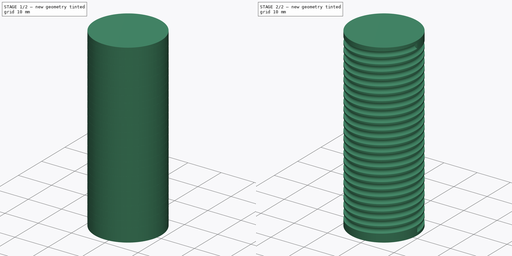
[diagram: build sequence overview — one tinted view per stage of 2, left to right]
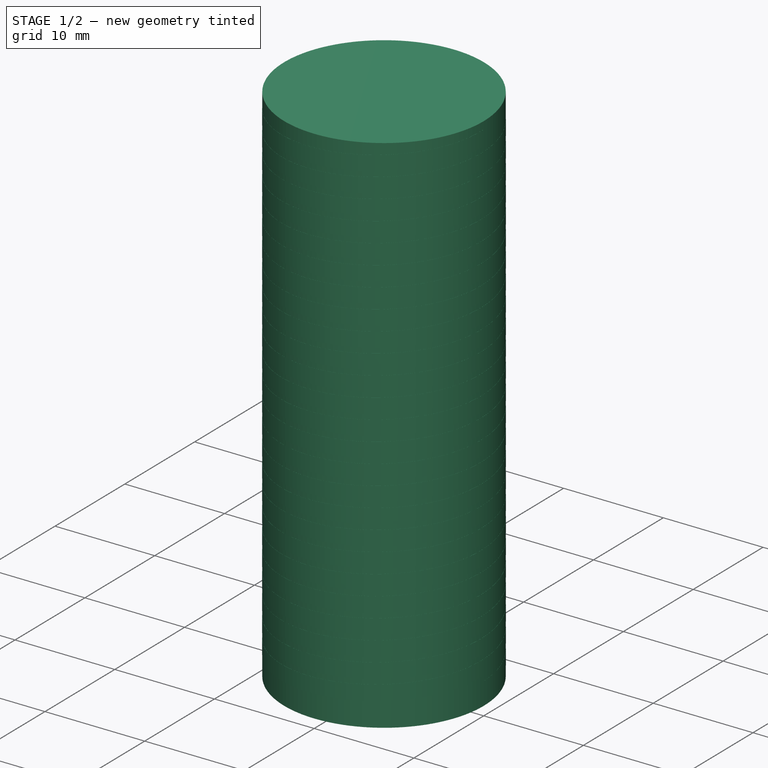
[diagram: stage 1 of 2 — iso view after this stage's code; geometry added in this stage tinted green]
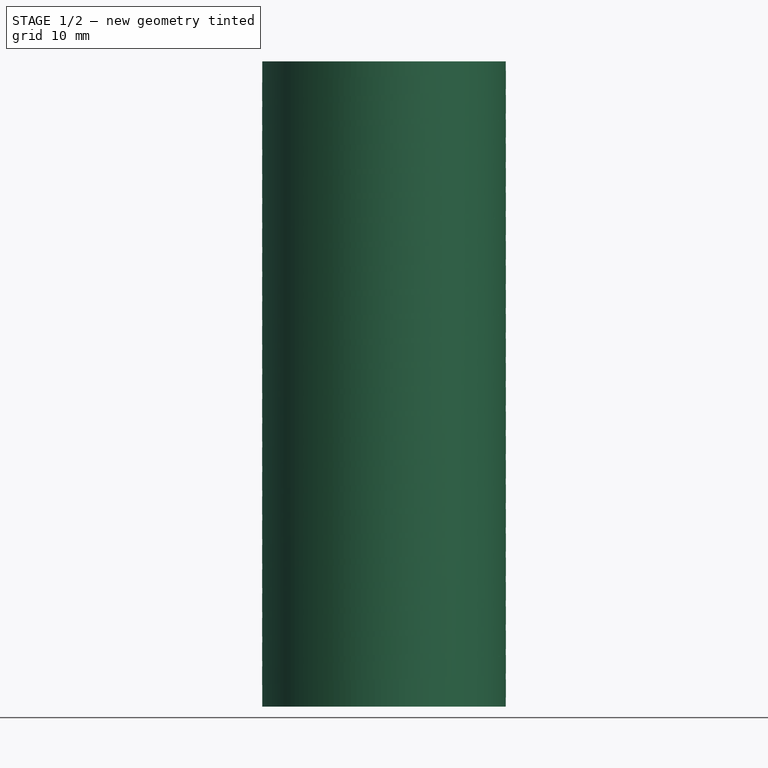
[diagram: stage 1 of 2 — front view after this stage's code; geometry added in this stage tinted green]
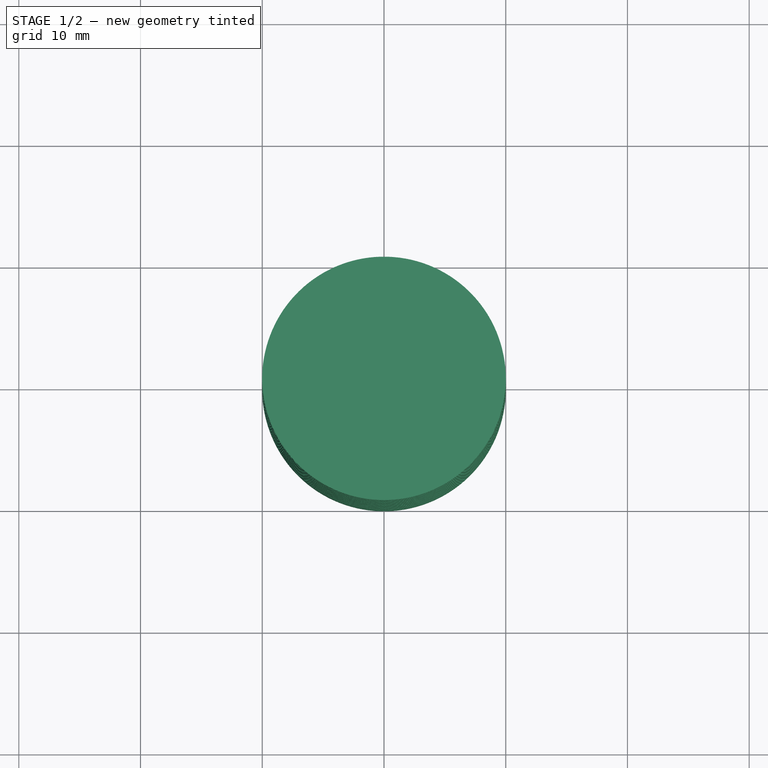
[diagram: stage 1 of 2 — top view after this stage's code; geometry added in this stage tinted green]
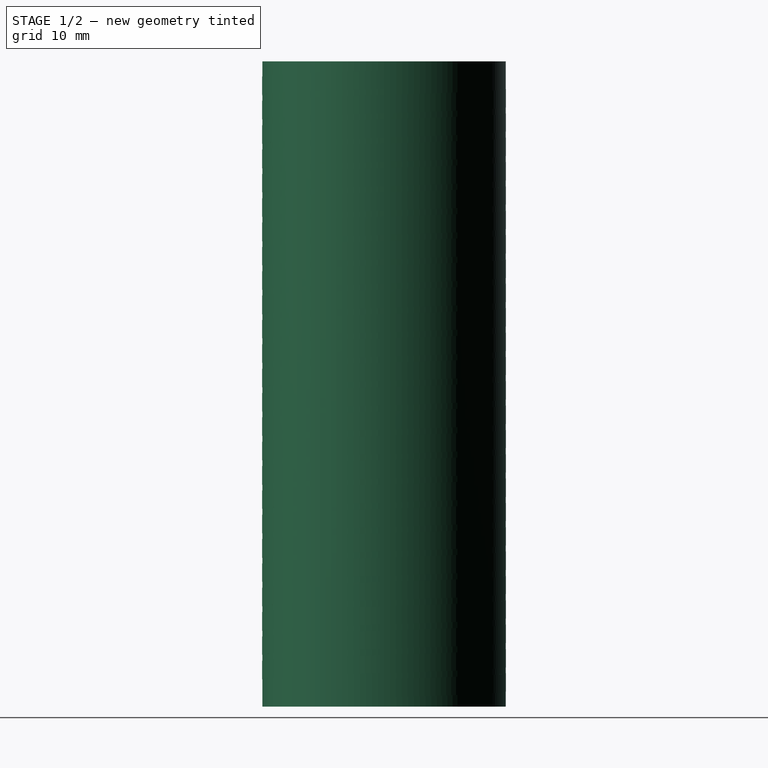
[diagram: stage 1 of 2 — right view after this stage's code; geometry added in this stage tinted green]
FCSTD DOCUMENT  (FreeCAD 0.16R6700 (Git))
Label: pulley_string
License: All rights reserved
LicenseURL: http://en.wikipedia.org/wiki/All_rights_reserved
objects: App::DocumentObjectGroup×1, Part::Helix×1, Sketcher::SketchObject×1, Part::Cylinder×1, Part::Sweep×1, Part::Cut×1
note: 5 computed .brp shape members not serialized (recipe doc carries the construction recipe); baked Part::Feature solids carry a one-line shape summary decoded from their .brp

FEATURE [App::DocumentObjectGroup] ____________
FEATURE [Part::Helix] Helix  label="Спираль"
  Angle = 0
  Height = 50
  LocalCoord = 0
  Pitch = 2
  Radius = 10
  Style = 1
FEATURE [Sketcher::SketchObject] Sketch
  Placement = pos=(0,0,0) rot=(1,0,0;1.5708rad)
  sketch-geometry (2):
    g0: ArcOfCircle CenterX=10.01 CenterY=0 CenterZ=0 NormalX=0 NormalY=0 NormalZ=1 Radius=0.75 StartAngle=1.5708 EndAngle=4.71239
    g1: LineSegment StartX=10.01 StartY=0.75 StartZ=0 EndX=10.01 EndY=-0.75 EndZ=0
  constraints (7):
    c: Vertical(g1)
    c: Coincident(g1,g0)
    c: PointOnObject(g0,g1)
    c: Coincident(g0,g1)
    c: Radius(g0) = 0.75
    c: PointOnObject(g0,g-1)
    c: Distance(g-1,g0) = 10.01
FEATURE [Part::Cylinder] Cylinder
  Angle = 360
  Height = 53
  Placement = pos=(0,0,-1.5) rot=(0,0,1;0rad)
  Radius = 10
FEATURE [Part::Sweep] Sweep
  Frenet = true
  Sections = -> [Sketch]
  Solid = true
  Spine = -> Helix
  Transition = 1
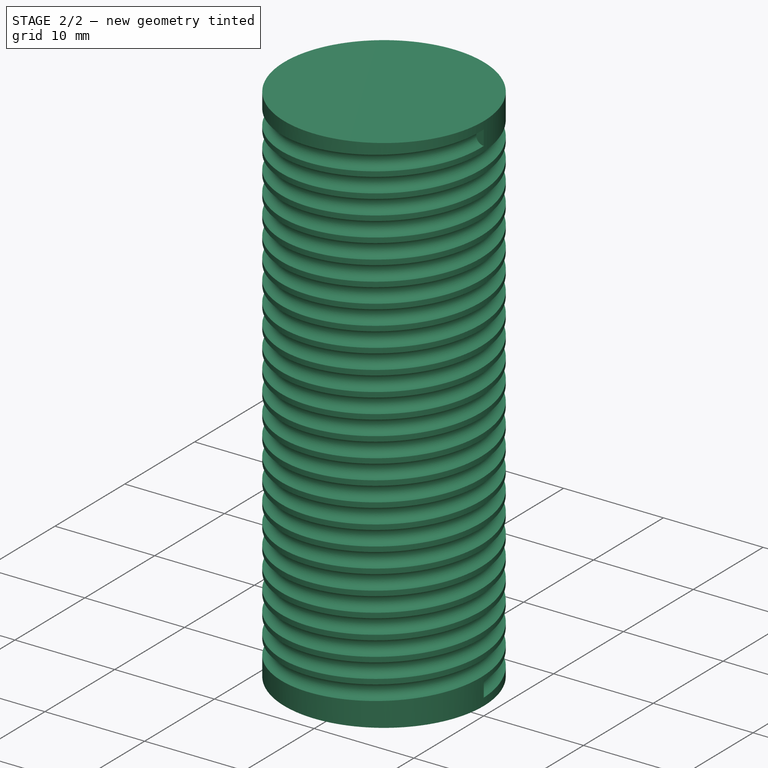
[diagram: stage 2 of 2 — iso view after this stage's code; geometry added in this stage tinted green]
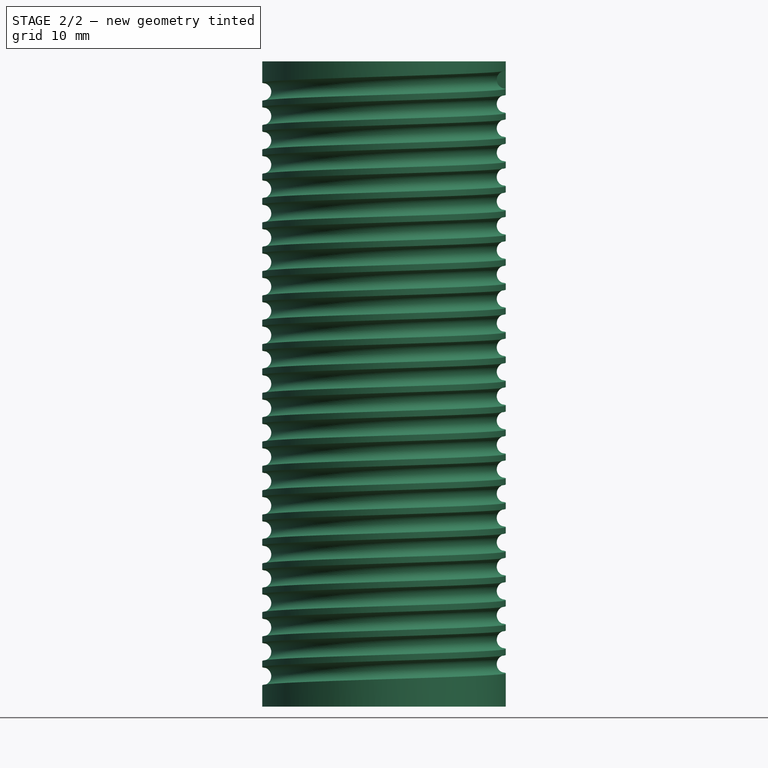
[diagram: stage 2 of 2 — front view after this stage's code; geometry added in this stage tinted green]
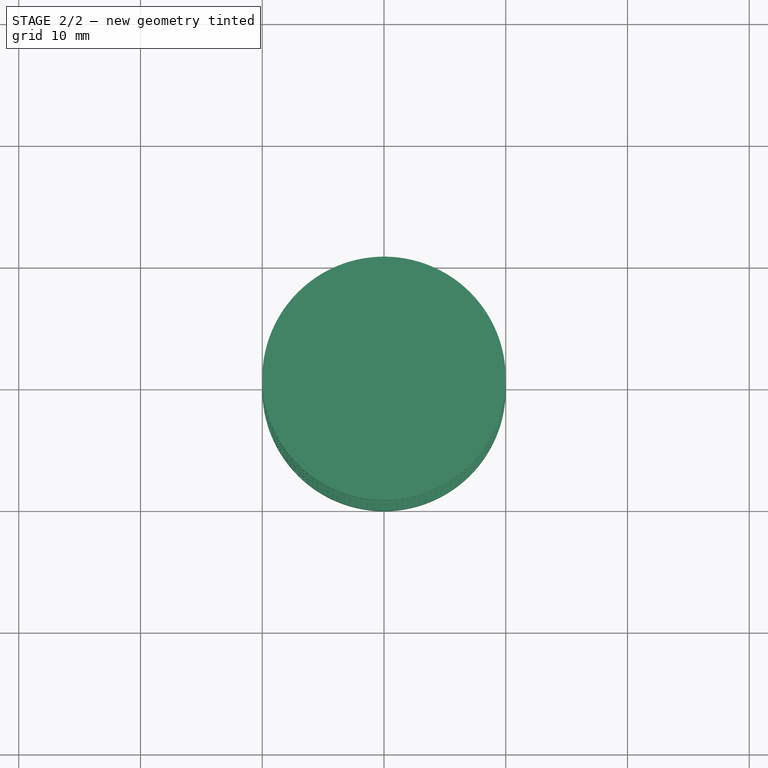
[diagram: stage 2 of 2 — top view after this stage's code; geometry added in this stage tinted green]
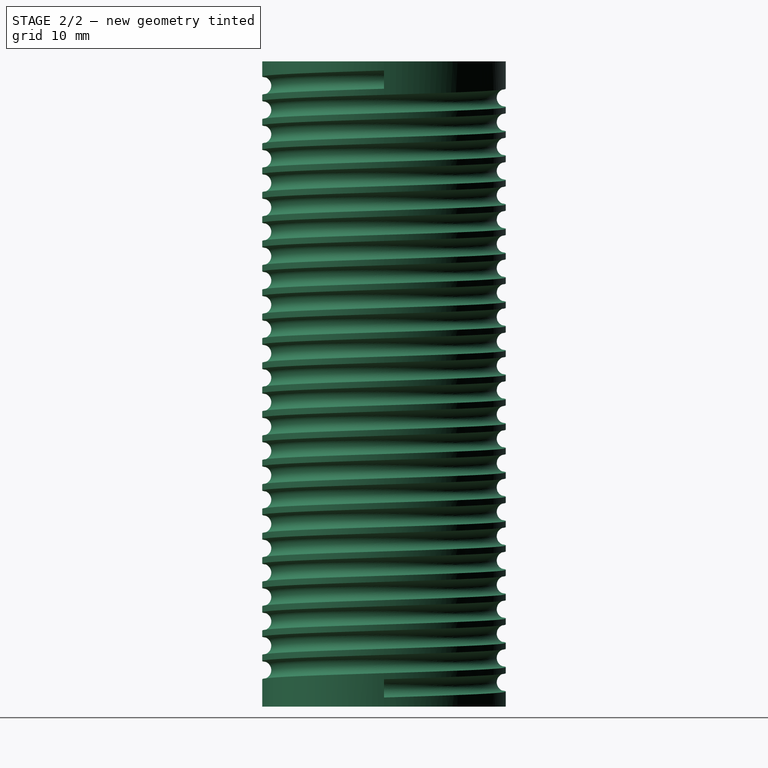
[diagram: stage 2 of 2 — right view after this stage's code; geometry added in this stage tinted green]
FEATURE [Part::Cut] Cut
  Base = -> Cylinder
  Tool = -> Sweep
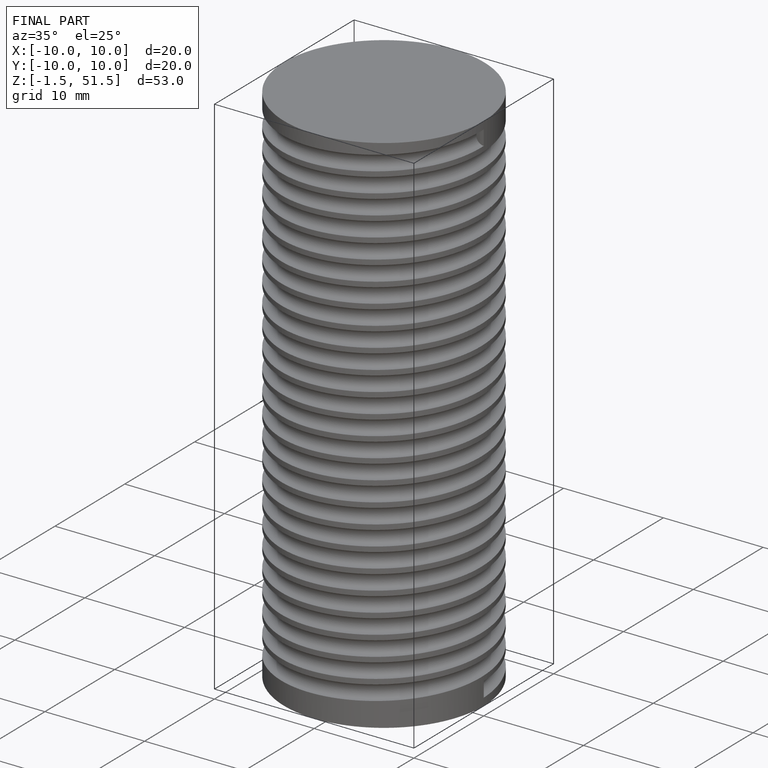
[diagram: finished part — iso view with bounding-box wireframe]
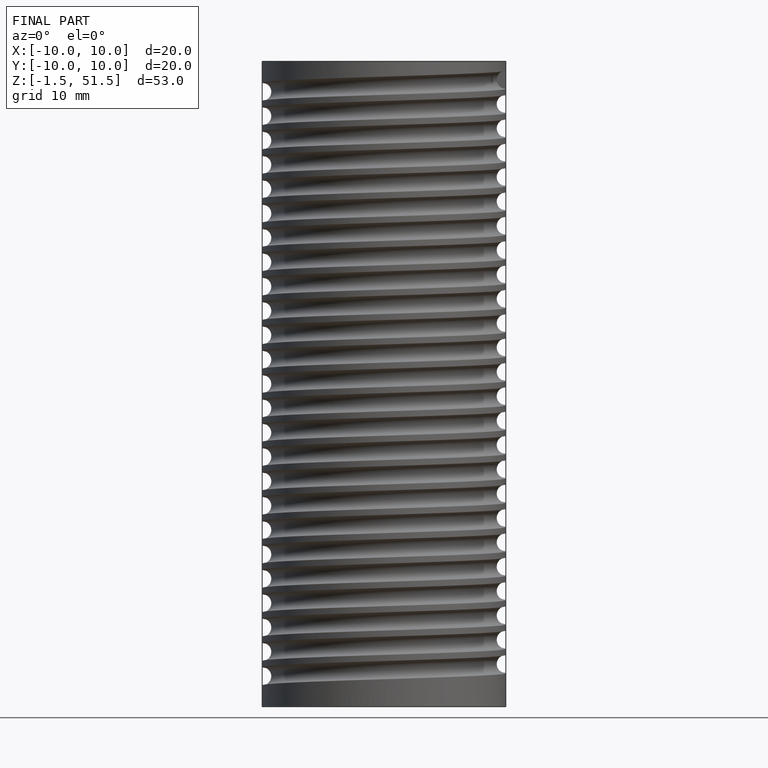
[diagram: finished part — front view with bounding-box wireframe]
